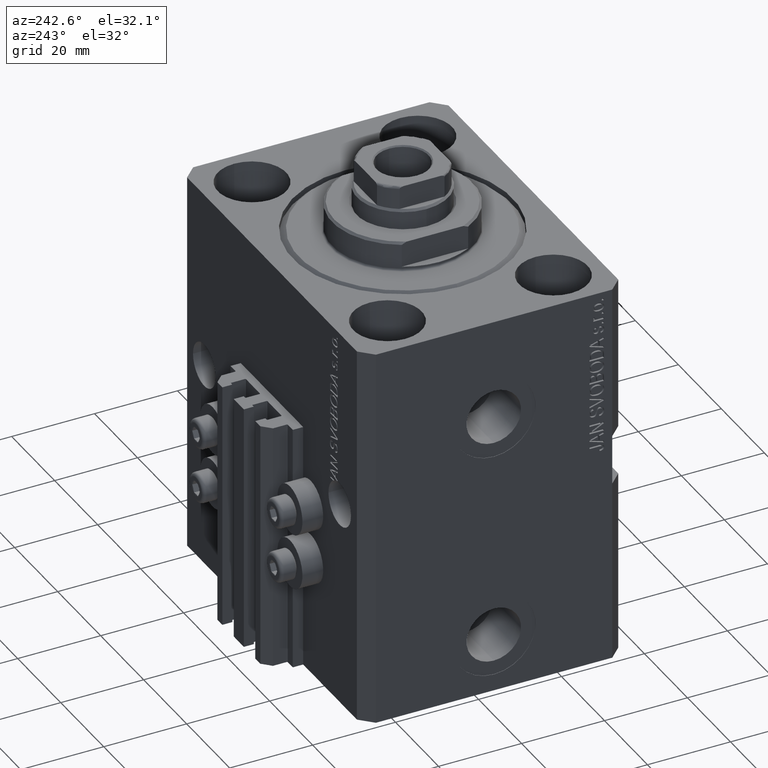
[diagram: clean part render]
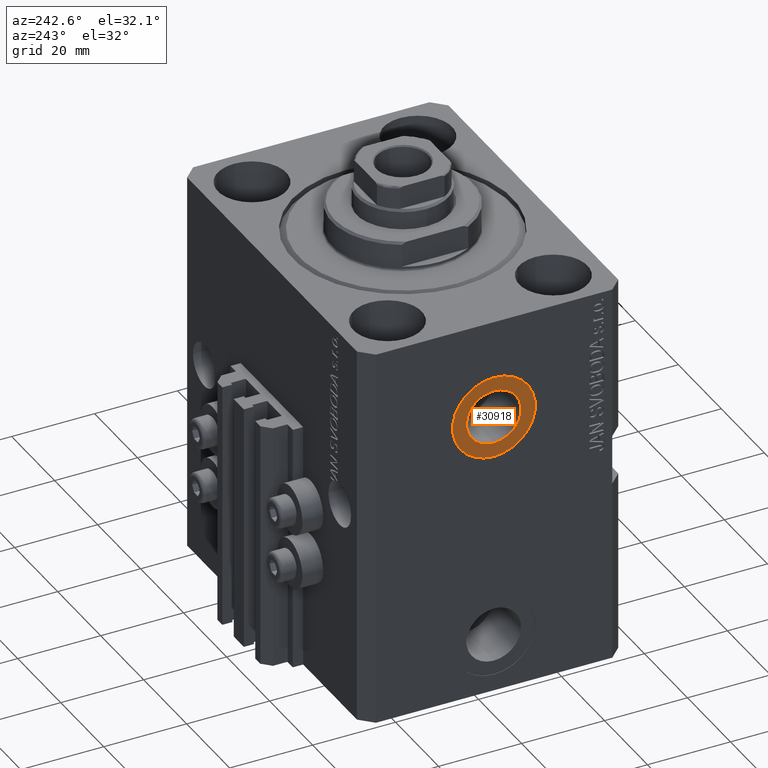
[diagram: same view with one face highlighted and labeled with its STEP entity id]
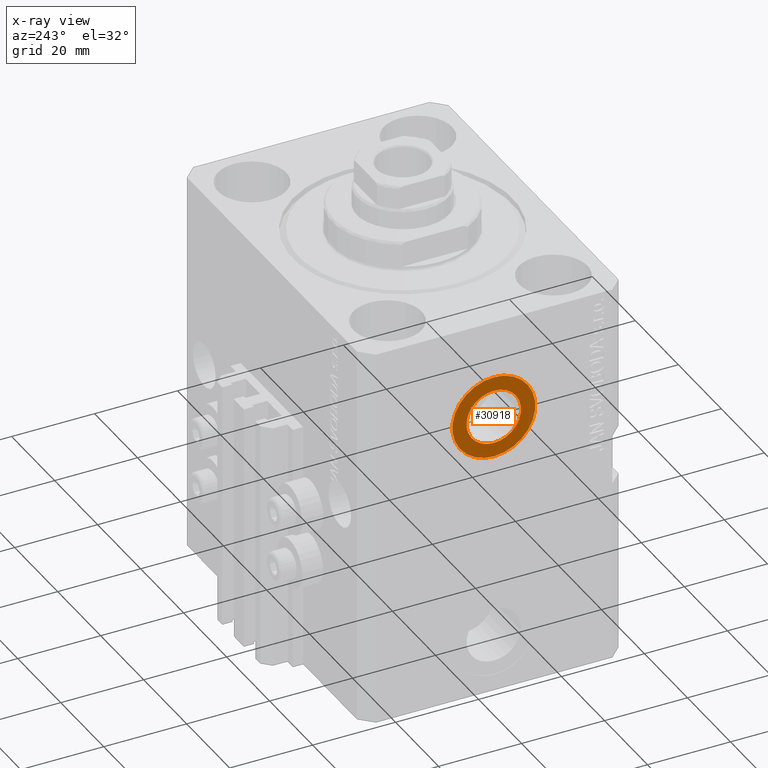
[diagram: x-ray of the same camera — body ghosted, the highlighted face saturated]
A machine part, auxiliary view. The second image highlights one B-rep face of the part: STEP entity #30918.
The next image is the same camera in x-ray: the body ghosted, the highlighted face saturated — about 0% of this face is hidden behind the body in this view.
In plain terms, the highlighted planar face has unit normal (-1, 0, 0).
Its self-contained STEP definition (entity closure, byte-faithful):
#671 = DIRECTION ( 'NONE',  ( 0.000000000000000000, 0.000000000000000000, 1.000000000000000000 ) ) ;
#4216 = VERTEX_POINT ( 'NONE', #30117 ) ;
#5352 = FACE_OUTER_BOUND ( 'NONE', #45521, .T. ) ;
#5457 = DIRECTION ( 'NONE',  ( -1.000000000000000000, 0.000000000000000000, 0.000000000000000000 ) ) ;
#9420 = DIRECTION ( 'NONE',  ( 0.000000000000000000, 0.000000000000000000, 1.000000000000000000 ) ) ;
#10190 = CARTESIAN_POINT ( 'NONE',  ( -42.39999999999999858, -3.469446951953614189E-15, -24.00000000000000000 ) ) ;
#10765 = EDGE_CURVE ( 'NONE', #23728, #29195, #37909, .T. ) ;
#11741 = ORIENTED_EDGE ( 'NONE', *, *, #13140, .F. ) ;
#13140 = EDGE_CURVE ( 'NONE', #41324, #4216, #20260, .T. ) ;
#13405 = DIRECTION ( 'NONE',  ( 0.000000000000000000, 0.000000000000000000, 1.000000000000000000 ) ) ;
#17566 = ORIENTED_EDGE ( 'NONE', *, *, #25487, .F. ) ;
#19048 = AXIS2_PLACEMENT_3D ( 'NONE', #38936, #46375, #13405 ) ;
#19491 = AXIS2_PLACEMENT_3D ( 'NONE', #32076, #46752, #39070 ) ;
#20018 = PLANE ( 'NONE',  #35202 ) ;
#20260 = CIRCLE ( 'NONE', #19491, 6.579999999999999183 ) ;
#21331 = CIRCLE ( 'NONE', #29032, 6.579999999999999183 ) ;
#21446 = CIRCLE ( 'NONE', #19048, 10.00000000000000000 ) ;
#23028 = CARTESIAN_POINT ( 'NONE',  ( -42.39999999999999858, -3.469446951953614189E-15, -24.00000000000000000 ) ) ;
#23728 = VERTEX_POINT ( 'NONE', #30481 ) ;
#23862 = FACE_BOUND ( 'NONE', #27115, .T. ) ;
#25487 = EDGE_CURVE ( 'NONE', #4216, #41324, #21331, .T. ) ;
#27115 = EDGE_LOOP ( 'NONE', ( #11741, #17566 ) ) ;
#28270 = CARTESIAN_POINT ( 'NONE',  ( -42.39999999999999858, -2.244800152806261524E-15, -34.00000000000000000 ) ) ;
#28919 = EDGE_CURVE ( 'NONE', #29195, #23728, #21446, .T. ) ;
#29032 = AXIS2_PLACEMENT_3D ( 'NONE', #10190, #46778, #43648 ) ;
#29195 = VERTEX_POINT ( 'NONE', #28270 ) ;
#30117 = CARTESIAN_POINT ( 'NONE',  ( -42.39999999999999858, -2.663629358114655936E-15, -30.57999999999999829 ) ) ;
#30481 = CARTESIAN_POINT ( 'NONE',  ( -42.39999999999999858, -3.469446951953614189E-15, -14.00000000000000000 ) ) ;
#30918 = ADVANCED_FACE ( 'NONE', ( #23862, #5352 ), #20018, .T. ) ;
#32076 = CARTESIAN_POINT ( 'NONE',  ( -42.39999999999999858, -3.469446951953614189E-15, -24.00000000000000000 ) ) ;
#33855 = ORIENTED_EDGE ( 'NONE', *, *, #10765, .T. ) ;
#34110 = CARTESIAN_POINT ( 'NONE',  ( -42.39999999999999858, -3.469446951953614189E-15, -17.42000000000000171 ) ) ;
#34375 = ORIENTED_EDGE ( 'NONE', *, *, #28919, .T. ) ;
#34709 = DIRECTION ( 'NONE',  ( -1.000000000000000000, 0.000000000000000000, 0.000000000000000000 ) ) ;
#35202 = AXIS2_PLACEMENT_3D ( 'NONE', #42396, #34709, #9420 ) ;
#37909 = CIRCLE ( 'NONE', #44790, 10.00000000000000000 ) ;
#38936 = CARTESIAN_POINT ( 'NONE',  ( -42.39999999999999858, -3.469446951953614189E-15, -24.00000000000000000 ) ) ;
#39070 = DIRECTION ( 'NONE',  ( 0.000000000000000000, 0.000000000000000000, 1.000000000000000000 ) ) ;
#41324 = VERTEX_POINT ( 'NONE', #34110 ) ;
#42396 = CARTESIAN_POINT ( 'NONE',  ( -42.39999999999999858, -3.469446951953614189E-15, -24.00000000000000000 ) ) ;
#43648 = DIRECTION ( 'NONE',  ( 0.000000000000000000, 0.000000000000000000, 1.000000000000000000 ) ) ;
#44790 = AXIS2_PLACEMENT_3D ( 'NONE', #23028, #5457, #671 ) ;
#45521 = EDGE_LOOP ( 'NONE', ( #33855, #34375 ) ) ;
#46375 = DIRECTION ( 'NONE',  ( -1.000000000000000000, 0.000000000000000000, 0.000000000000000000 ) ) ;
#46752 = DIRECTION ( 'NONE',  ( -1.000000000000000000, 0.000000000000000000, 0.000000000000000000 ) ) ;
#46778 = DIRECTION ( 'NONE',  ( -1.000000000000000000, 0.000000000000000000, 0.000000000000000000 ) ) ;